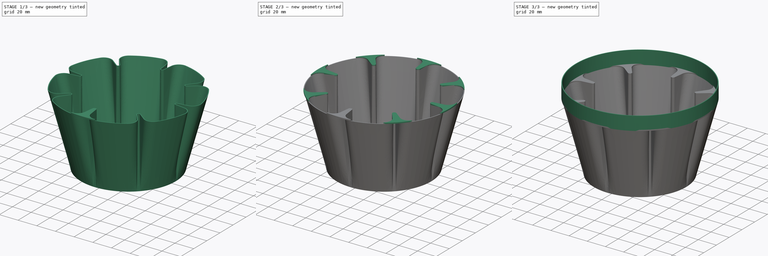
[diagram: build sequence overview — one tinted view per stage of 3, left to right]
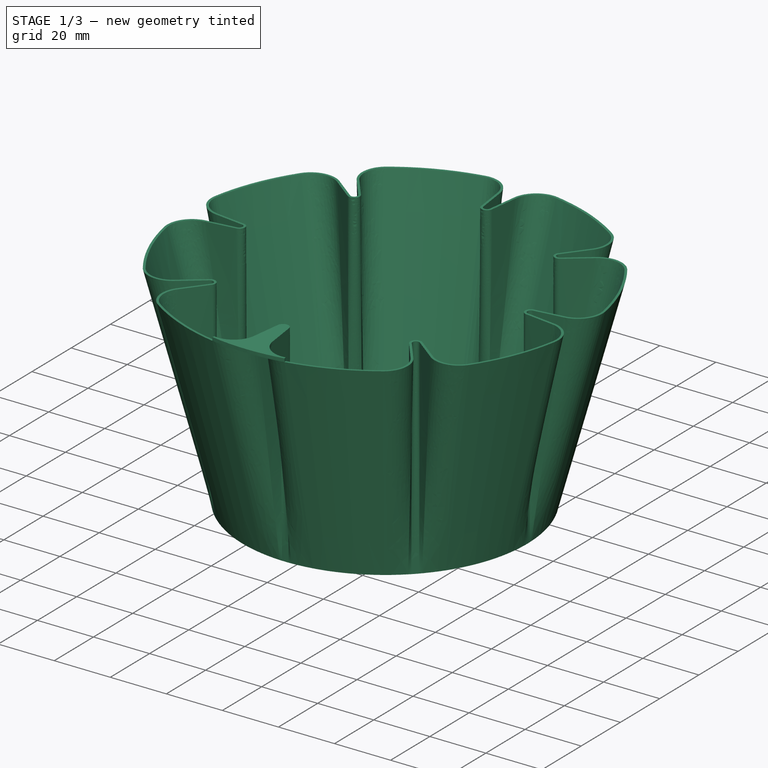
[diagram: stage 1 of 3 — iso view after this stage's code; geometry added in this stage tinted green]
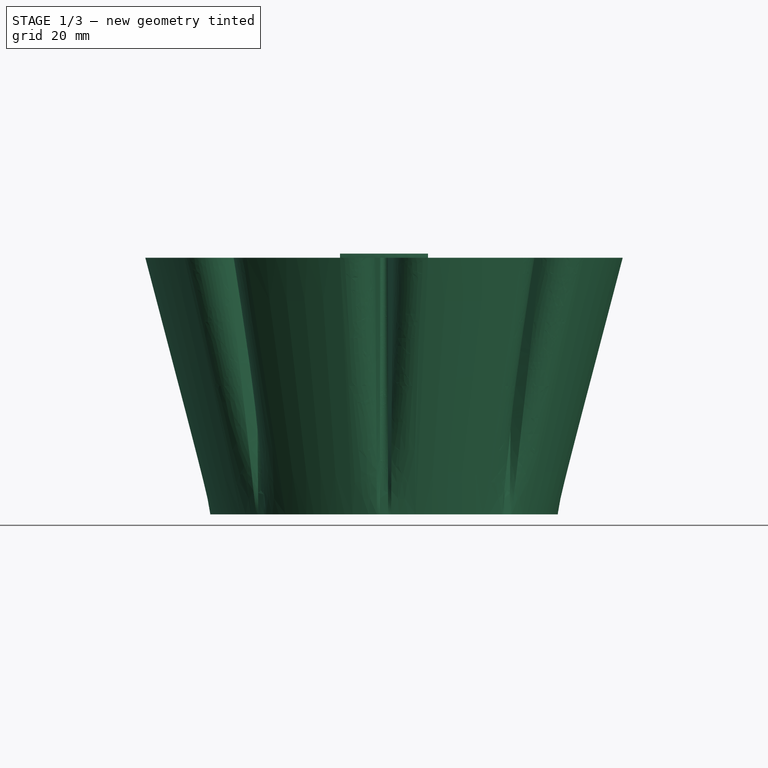
[diagram: stage 1 of 3 — front view after this stage's code; geometry added in this stage tinted green]
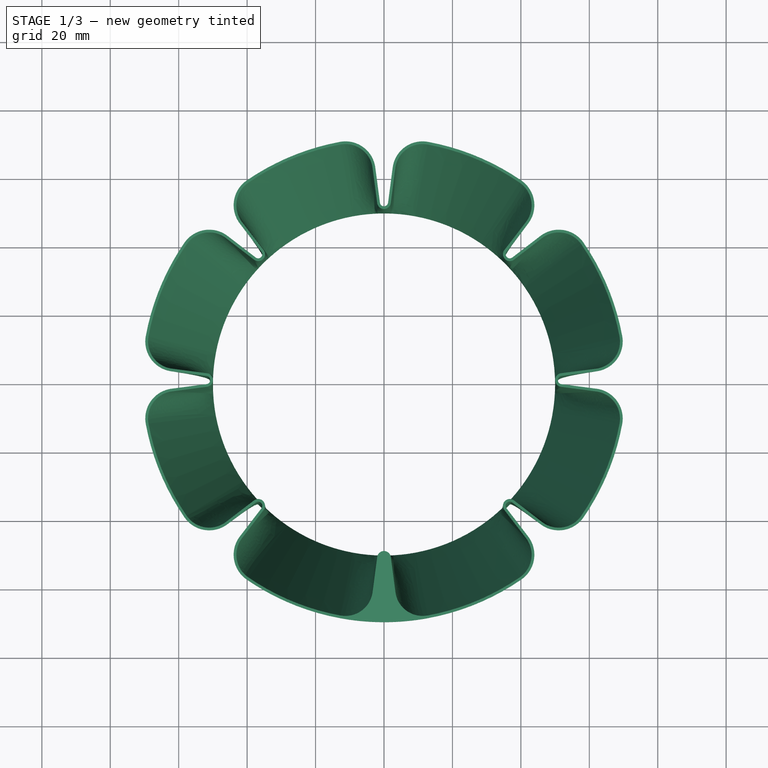
[diagram: stage 1 of 3 — top view after this stage's code; geometry added in this stage tinted green]
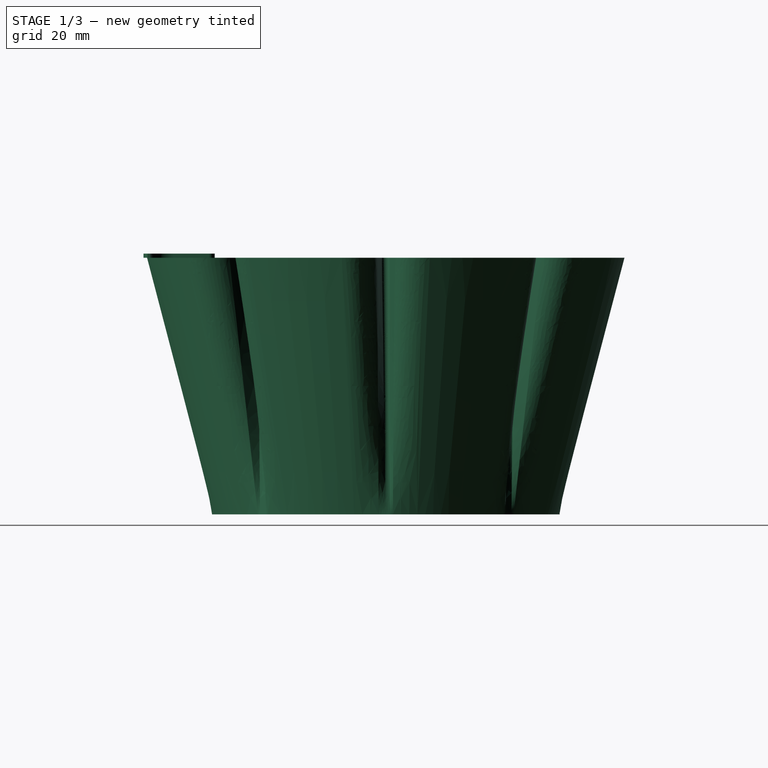
[diagram: stage 1 of 3 — right view after this stage's code; geometry added in this stage tinted green]
FCSTD DOCUMENT  (FreeCAD 0.19R23756 (Git))
Label: Kaspo
License: All rights reserved
LicenseURL: http://en.wikipedia.org/wiki/All_rights_reserved
objects: Sketcher::SketchObject×5, PartDesign::Pad×3, PartDesign::AdditiveLoft×1, PartDesign::PolarPattern×1, PartDesign::Body×1
note: 15 computed .brp shape members not serialized (recipe doc carries the construction recipe); baked Part::Feature solids carry a one-line shape summary decoded from their .brp

FEATURE [Sketcher::SketchObject] Sketch
  AttachmentOffset = pos=(0,0,75) rot=(0,0,1;0rad)
  FullyConstrained = true
  MapMode = 5
  Placement = pos=(0,0,75) rot=(0,0,1;0rad)
  Support = -> [XY_Plane]
  sketch-geometry (155):
    g0: Circle CenterX=0 CenterY=0 CenterZ=0 NormalX=0 NormalY=0 NormalZ=1 AngleXU=0 Radius=50
    g1: ArcOfCircle CenterX=1e-16 CenterY=-52 CenterZ=0 NormalX=0 NormalY=0 NormalZ=1 AngleXU=0 Radius=2 StartAngle=0.1309 EndAngle=3.01069
    g2: LineSegment StartX=-1.98289 StartY=-51.7389 StartZ=0 EndX=-3.33535 EndY=-62.0119 EndZ=0
    g3: LineSegment StartX=1.98289 StartY=-51.7389 StartZ=0 EndX=3.33535 EndY=-62.0119 EndZ=0
    g4: ArcOfCircle CenterX=-11.2669 CenterY=-60.9677 CenterZ=0 NormalX=0 NormalY=0 NormalZ=1 AngleXU=0 Radius=8 StartAngle=4.52965 EndAngle=6.15229
    g5: ArcOfCircle CenterX=0 CenterY=0 CenterZ=0 NormalX=0 NormalY=0 NormalZ=1 AngleXU=0 Radius=70 StartAngle=4.10973 EndAngle=4.52965
    g6: ArcOfCircle CenterX=-52 CenterY=0 CenterZ=0 NormalX=0 NormalY=0 NormalZ=1 AngleXU=0 Radius=2 StartAngle=4.84329 EndAngle=7.72308
    g7: ArcOfCircle CenterX=-36.7696 CenterY=-36.7696 CenterZ=0 NormalX=0 NormalY=0 NormalZ=1 AngleXU=0 Radius=2 StartAngle=5.62869 EndAngle=8.50848
    g8: LineSegment StartX=-36.7696 StartY=-36.7696 StartZ=0 EndX=36.7696 EndY=36.7696 EndZ=0
    g9: LineSegment StartX=-35.1828 StartY=-37.9871 StartZ=0 EndX=-41.4906 EndY=-46.2075 EndZ=0
    g10: LineSegment StartX=-37.9871 StartY=-35.1828 StartZ=0 EndX=-46.2075 EndY=-41.4906 EndZ=0
    g11: ArcOfCircle CenterX=-35.1437 CenterY=-51.0776 CenterZ=0 NormalX=0 NormalY=0 NormalZ=1 AngleXU=0 Radius=8 StartAngle=2.48709 EndAngle=4.10973
    g12: ArcOfCircle CenterX=0 CenterY=0 CenterZ=0 NormalX=0 NormalY=0 NormalZ=1 AngleXU=0 Radius=70 StartAngle=3.32433 EndAngle=3.74425
    g13: ArcOfCircle CenterX=-51.0776 CenterY=-35.1437 CenterZ=0 NormalX=0 NormalY=0 NormalZ=1 AngleXU=0 Radius=8 StartAngle=3.74425 EndAngle=5.36689
    g14: LineSegment StartX=-46.2075 StartY=-41.4906 StartZ=0 EndX=-41.4906 EndY=-46.2075 EndZ=0
    g15: LineSegment StartX=-51.7389 StartY=-1.98289 StartZ=0 EndX=-62.0119 EndY=-3.33535 EndZ=0
    g16: LineSegment StartX=-51.7389 StartY=1.98289 StartZ=0 EndX=-62.0119 EndY=3.33535 EndZ=0
    g17: ArcOfCircle CenterX=-60.9677 CenterY=-11.2669 CenterZ=0 NormalX=0 NormalY=0 NormalZ=1 AngleXU=0 Radius=8 StartAngle=1.7017 EndAngle=3.32433
    g18: LineSegment StartX=-3.33535 StartY=-62.0119 StartZ=0 EndX=3.33535 EndY=-62.0119 EndZ=0
    g19: LineSegment StartX=-62.0119 StartY=3.33535 StartZ=0 EndX=-62.0119 EndY=-3.33535 EndZ=0
    g20: ArcOfCircle CenterX=52 CenterY=-1e-16 CenterZ=0 NormalX=0 NormalY=0 NormalZ=1 AngleXU=0 Radius=2 StartAngle=1.7017 EndAngle=4.58149
    g21: ArcOfCircle CenterX=-2e-16 CenterY=52 CenterZ=0 NormalX=0 NormalY=0 NormalZ=1 AngleXU=0 Radius=2 StartAngle=3.27249 EndAngle=6.15229
    g22: LineSegment StartX=-36.7696 StartY=36.7696 StartZ=0 EndX=36.7696 EndY=-36.7696 EndZ=0
    g23: ArcOfCircle CenterX=36.7696 CenterY=-36.7696 CenterZ=0 NormalX=0 NormalY=0 NormalZ=1 AngleXU=0 Radius=2 StartAngle=0.916298 EndAngle=3.79609
    g24: ArcOfCircle CenterX=-36.7696 CenterY=36.7696 CenterZ=0 NormalX=0 NormalY=0 NormalZ=1 AngleXU=0 Radius=2 StartAngle=4.05789 EndAngle=6.93768
    g25: LineSegment StartX=35.1828 StartY=-37.9871 StartZ=0 EndX=41.4906 EndY=-46.2075 EndZ=0
    g26: LineSegment StartX=37.9871 StartY=-35.1828 StartZ=0 EndX=46.2075 EndY=-41.4906 EndZ=0
    g27: LineSegment StartX=41.4906 StartY=-46.2075 StartZ=0 EndX=46.2075 EndY=-41.4906 EndZ=0
    g28: LineSegment StartX=51.7389 StartY=-1.98289 StartZ=0 EndX=62.0119 EndY=-3.33535 EndZ=0
    g29: LineSegment StartX=51.7389 StartY=1.98289 StartZ=0 EndX=62.0119 EndY=3.33535 EndZ=0
    g30: LineSegment StartX=62.0119 StartY=3.33535 StartZ=0 EndX=62.0119 EndY=-3.33535 EndZ=0
    g31: ArcOfCircle CenterX=36.7696 CenterY=36.7696 CenterZ=0 NormalX=0 NormalY=0 NormalZ=1 AngleXU=0 Radius=2 StartAngle=2.48709 EndAngle=5.36689
    g32: LineSegment StartX=37.9871 StartY=35.1828 StartZ=0 EndX=46.2075 EndY=41.4906 EndZ=0
    g33: LineSegment StartX=35.1828 StartY=37.9871 StartZ=0 EndX=41.4906 EndY=46.2075 EndZ=0
    g34: LineSegment StartX=-35.1828 StartY=37.9871 StartZ=0 EndX=-41.4906 EndY=46.2075 EndZ=0
    g35: LineSegment StartX=-37.9871 StartY=35.1828 StartZ=0 EndX=-46.2075 EndY=41.4906 EndZ=0
    g36: LineSegment StartX=-1.98289 StartY=51.7389 StartZ=0 EndX=-3.33535 EndY=62.0119 EndZ=0
    g37: LineSegment StartX=1.98289 StartY=51.7389 StartZ=0 EndX=3.33535 EndY=62.0119 EndZ=0
    g38: LineSegment StartX=-46.2075 StartY=41.4906 StartZ=0 EndX=-41.4906 EndY=46.2075 EndZ=0
    g39: LineSegment StartX=-3.33535 StartY=62.0119 StartZ=0 EndX=3.33535 EndY=62.0119 EndZ=0
    g40: LineSegment StartX=41.4906 StartY=46.2075 StartZ=0 EndX=46.2075 EndY=41.4906 EndZ=0
    g41: ArcOfCircle CenterX=0 CenterY=0 CenterZ=0 NormalX=0 NormalY=0 NormalZ=1 AngleXU=0 Radius=70 StartAngle=2.53893 EndAngle=2.95885
    g42: ArcOfCircle CenterX=0 CenterY=0 CenterZ=0 NormalX=0 NormalY=0 NormalZ=1 AngleXU=0 Radius=70 StartAngle=1.75354 EndAngle=2.17345
    g43: ArcOfCircle CenterX=0 CenterY=0 CenterZ=0 NormalX=0 NormalY=0 NormalZ=1 AngleXU=0 Radius=70 StartAngle=0.968138 EndAngle=1.38806
    g44: ArcOfCircle CenterX=0 CenterY=0 CenterZ=0 NormalX=0 NormalY=0 NormalZ=1 AngleXU=0 Radius=70 StartAngle=0.18274 EndAngle=0.602659
    g45: ArcOfCircle CenterX=0 CenterY=0 CenterZ=0 NormalX=0 NormalY=0 NormalZ=1 AngleXU=0 Radius=70 StartAngle=5.68053 EndAngle=6.10045
    g46: ArcOfCircle CenterX=0 CenterY=0 CenterZ=0 NormalX=0 NormalY=0 NormalZ=1 AngleXU=0 Radius=70 StartAngle=4.89513 EndAngle=5.31505
    g47: ArcOfCircle CenterX=-60.9677 CenterY=11.2669 CenterZ=0 NormalX=0 NormalY=0 NormalZ=1 AngleXU=0 Radius=8 StartAngle=2.95885 EndAngle=4.58149
    g48: ArcOfCircle CenterX=-51.0776 CenterY=35.1437 CenterZ=0 NormalX=0 NormalY=0 NormalZ=1 AngleXU=0 Radius=8 StartAngle=0.916298 EndAngle=2.53893
    g49: ArcOfCircle CenterX=-35.1437 CenterY=51.0776 CenterZ=0 NormalX=0 NormalY=0 NormalZ=1 AngleXU=0 Radius=8 StartAngle=2.17345 EndAngle=3.79609
    g50: ArcOfCircle CenterX=-11.2669 CenterY=60.9677 CenterZ=0 NormalX=0 NormalY=0 NormalZ=1 AngleXU=0 Radius=8 StartAngle=0.1309 EndAngle=1.75354
    g51: ArcOfCircle CenterX=11.2669 CenterY=60.9677 CenterZ=0 NormalX=0 NormalY=0 NormalZ=1 AngleXU=0 Radius=8 StartAngle=1.38806 EndAngle=3.01069
    g52: ArcOfCircle CenterX=35.1437 CenterY=51.0776 CenterZ=0 NormalX=0 NormalY=0 NormalZ=1 AngleXU=0 Radius=8 StartAngle=5.62869 EndAngle=7.25132
    g53: ArcOfCircle CenterX=51.0776 CenterY=35.1437 CenterZ=0 NormalX=0 NormalY=0 NormalZ=1 AngleXU=0 Radius=8 StartAngle=0.602659 EndAngle=2.22529
    g54: ArcOfCircle CenterX=60.9677 CenterY=11.2669 CenterZ=0 NormalX=0 NormalY=0 NormalZ=1 AngleXU=0 Radius=8 StartAngle=4.84329 EndAngle=6.46592
    g55: ArcOfCircle CenterX=60.9677 CenterY=-11.2669 CenterZ=0 NormalX=0 NormalY=0 NormalZ=1 AngleXU=0 Radius=8 StartAngle=6.10045 EndAngle=7.72308
    g56: ArcOfCircle CenterX=51.0776 CenterY=-35.1437 CenterZ=0 NormalX=0 NormalY=0 NormalZ=1 AngleXU=0 Radius=8 StartAngle=4.05789 EndAngle=5.68053
    g57: ArcOfCircle CenterX=35.1437 CenterY=-51.0776 CenterZ=0 NormalX=0 NormalY=0 NormalZ=1 AngleXU=0 Radius=8 StartAngle=5.31505 EndAngle=6.93768
    g58: ArcOfCircle CenterX=11.2669 CenterY=-60.9677 CenterZ=0 NormalX=0 NormalY=0 NormalZ=1 AngleXU=0 Radius=8 StartAngle=3.27249 EndAngle=4.89513
    g59: ArcOfCircle CenterX=-36.7696 CenterY=36.7696 CenterZ=0 NormalX=0 NormalY=0 NormalZ=1 AngleXU=0 Radius=1.2 StartAngle=4.05789 EndAngle=6.93768
    g60: LineSegment StartX=-35.8175 StartY=37.5001 StartZ=0 EndX=-35.1828 EndY=37.9871 EndZ=0
    g61: LineSegment StartX=-37.5001 StartY=35.8175 StartZ=0 EndX=-37.9871 EndY=35.1828 EndZ=0
    g62: ArcOfCircle CenterX=-35.1437 CenterY=51.0776 CenterZ=0 NormalX=0 NormalY=0 NormalZ=1 AngleXU=0 Radius=8.8 StartAngle=2.17345 EndAngle=3.79609
    g63: LineSegment StartX=-42.1253 StartY=45.7205 StartZ=0 EndX=-41.4906 EndY=46.2075 EndZ=0
    g64: LineSegment StartX=-40.1319 StartY=58.3273 StartZ=0 EndX=-39.6784 EndY=57.6682 EndZ=0
    g65: LineSegment StartX=-42.1253 StartY=45.7205 StartZ=0 EndX=-35.8175 EndY=37.5001 EndZ=0
    g66: ArcOfCircle CenterX=-51.0776 CenterY=35.1437 CenterZ=0 NormalX=0 NormalY=0 NormalZ=1 AngleXU=0 Radius=8.8 StartAngle=0.916298 EndAngle=2.53893
    g67: LineSegment StartX=-45.7205 StartY=42.1253 StartZ=0 EndX=-37.5001 EndY=35.8175 EndZ=0
    g68: LineSegment StartX=-58.3273 StartY=40.1319 StartZ=0 EndX=-57.6682 EndY=39.6784 EndZ=0
    g69: LineSegment StartX=-45.7205 StartY=42.1253 StartZ=0 EndX=-46.2075 EndY=41.4906 EndZ=0
    g70: ArcOfCircle CenterX=-11.2669 CenterY=60.9677 CenterZ=0 NormalX=0 NormalY=0 NormalZ=1 AngleXU=0 Radius=8.8 StartAngle=0.1309 EndAngle=1.75354
    g71: ArcOfCircle CenterX=11.2669 CenterY=60.9677 CenterZ=0 NormalX=0 NormalY=0 NormalZ=1 AngleXU=0 Radius=8.8 StartAngle=1.38806 EndAngle=3.01069
    g72: ArcOfCircle CenterX=35.1437 CenterY=51.0776 CenterZ=0 NormalX=0 NormalY=0 NormalZ=1 AngleXU=0 Radius=8.8 StartAngle=5.62869 EndAngle=7.25132
    g73: ArcOfCircle CenterX=51.0776 CenterY=35.1437 CenterZ=0 NormalX=0 NormalY=0 NormalZ=1 AngleXU=0 Radius=8.8 StartAngle=0.602659 EndAngle=2.22529
    g74: ArcOfCircle CenterX=-2e-16 CenterY=52 CenterZ=0 NormalX=0 NormalY=0 NormalZ=1 AngleXU=0 Radius=1.2 StartAngle=3.27249 EndAngle=6.15229
    g75: ArcOfCircle CenterX=36.7696 CenterY=36.7696 CenterZ=0 NormalX=0 NormalY=0 NormalZ=1 AngleXU=0 Radius=1.2 StartAngle=2.48709 EndAngle=5.36689
    g76: ArcOfCircle CenterX=52 CenterY=-1e-16 CenterZ=0 NormalX=0 NormalY=0 NormalZ=1 AngleXU=0 Radius=1.2 StartAngle=1.7017 EndAngle=4.58149
    g77: ArcOfCircle CenterX=60.9677 CenterY=11.2669 CenterZ=0 NormalX=0 NormalY=0 NormalZ=1 AngleXU=0 Radius=8.8 StartAngle=4.84329 EndAngle=6.46592
    g78: ArcOfCircle CenterX=60.9677 CenterY=-11.2669 CenterZ=0 NormalX=0 NormalY=0 NormalZ=1 AngleXU=0 Radius=8.8 StartAngle=6.10045 EndAngle=7.72308
    g79: ArcOfCircle CenterX=51.0776 CenterY=-35.1437 CenterZ=0 NormalX=0 NormalY=0 NormalZ=1 AngleXU=0 Radius=8.8 StartAngle=4.05789 EndAngle=5.68053
    g80: ArcOfCircle CenterX=36.7696 CenterY=-36.7696 CenterZ=0 NormalX=0 NormalY=0 NormalZ=1 AngleXU=0 Radius=1.2 StartAngle=0.916298 EndAngle=3.79609
    g81: ArcOfCircle CenterX=35.1437 CenterY=-51.0776 CenterZ=0 NormalX=0 NormalY=0 NormalZ=1 AngleXU=0 Radius=8.8 StartAngle=5.31505 EndAngle=6.93768
    g82: ArcOfCircle CenterX=1e-16 CenterY=-52 CenterZ=0 NormalX=0 NormalY=0 NormalZ=1 AngleXU=0 Radius=1.2 StartAngle=0.1309 EndAngle=3.01069
    g83: ArcOfCircle CenterX=11.2669 CenterY=-60.9677 CenterZ=0 NormalX=0 NormalY=0 NormalZ=1 AngleXU=0 Radius=8.8 StartAngle=3.27249 EndAngle=4.89513
    g84: ArcOfCircle CenterX=-11.2669 CenterY=-60.9677 CenterZ=0 NormalX=0 NormalY=0 NormalZ=1 AngleXU=0 Radius=8.8 StartAngle=4.52965 EndAngle=6.15229
    g85: ArcOfCircle CenterX=-36.7696 CenterY=-36.7696 CenterZ=0 NormalX=0 NormalY=0 NormalZ=1 AngleXU=0 Radius=1.2 StartAngle=5.62869 EndAngle=8.50848
    g86: ArcOfCircle CenterX=-35.1437 CenterY=-51.0776 CenterZ=0 NormalX=0 NormalY=0 NormalZ=1 AngleXU=0 Radius=8.8 StartAngle=2.48709 EndAngle=4.10973
    g87: ArcOfCircle CenterX=-51.0776 CenterY=-35.1437 CenterZ=0 NormalX=0 NormalY=0 NormalZ=1 AngleXU=0 Radius=8.8 StartAngle=3.74425 EndAngle=5.36689
    g88: ArcOfCircle CenterX=-52 CenterY=0 CenterZ=0 NormalX=0 NormalY=0 NormalZ=1 AngleXU=0 Radius=1.2 StartAngle=4.84329 EndAngle=7.72308
    g89: ArcOfCircle CenterX=-60.9677 CenterY=11.2669 CenterZ=0 NormalX=0 NormalY=0 NormalZ=1 AngleXU=0 Radius=8.8 StartAngle=2.95885 EndAngle=4.58149
    g90: ArcOfCircle CenterX=-60.9677 CenterY=-11.2669 CenterZ=0 NormalX=0 NormalY=0 NormalZ=1 AngleXU=0 Radius=8.8 StartAngle=1.7017 EndAngle=3.32433
    g91: LineSegment StartX=-69.6211 StartY=12.8661 StartZ=0 EndX=-68.8345 EndY=12.7207 EndZ=0
    g92: LineSegment StartX=-62.1163 StartY=2.54219 StartZ=0 EndX=-62.0119 EndY=3.33535 EndZ=0
    g93: LineSegment StartX=-62.1163 StartY=-2.54219 StartZ=0 EndX=-62.0119 EndY=-3.33535 EndZ=0
    g94: LineSegment StartX=-69.6211 StartY=-12.8661 StartZ=0 EndX=-68.8345 EndY=-12.7207 EndZ=0
    g95: LineSegment StartX=-51.7389 StartY=1.98289 StartZ=0 EndX=-51.8434 EndY=1.18973 EndZ=0
    g96: LineSegment StartX=-51.8434 StartY=-1.18973 StartZ=0 EndX=-51.7389 EndY=-1.98289 EndZ=0
    g97: ArcOfCircle CenterX=0 CenterY=0 CenterZ=0 NormalX=0 NormalY=0 NormalZ=1 AngleXU=0 Radius=70.8 StartAngle=2.53893 EndAngle=2.95885
    g98: ArcOfCircle CenterX=0 CenterY=0 CenterZ=0 NormalX=0 NormalY=0 NormalZ=1 AngleXU=0 Radius=70.8 StartAngle=3.32433 EndAngle=3.74425
    g99: LineSegment StartX=-58.3273 StartY=-40.1319 StartZ=0 EndX=-57.6682 EndY=-39.6784 EndZ=0
    g100: LineSegment StartX=-45.7205 StartY=-42.1253 StartZ=0 EndX=-46.2075 EndY=-41.4906 EndZ=0
    g101: LineSegment StartX=-37.9871 StartY=-35.1828 StartZ=0 EndX=-37.5001 EndY=-35.8175 EndZ=0
    g102: LineSegment StartX=-35.8175 StartY=-37.5001 StartZ=0 EndX=-35.1828 EndY=-37.9871 EndZ=0
    g103: LineSegment StartX=-42.1253 StartY=-45.7205 StartZ=0 EndX=-41.4906 EndY=-46.2075 EndZ=0
    g104: LineSegment StartX=-40.1319 StartY=-58.3273 StartZ=0 EndX=-39.6784 EndY=-57.6682 EndZ=0
    g105: LineSegment StartX=-12.8661 StartY=-69.6211 StartZ=0 EndX=-12.7207 EndY=-68.8345 EndZ=0
    g106: LineSegment StartX=-2.54219 StartY=-62.1163 StartZ=0 EndX=-3.33535 EndY=-62.0119 EndZ=0
    g107: LineSegment StartX=-1.98289 StartY=-51.7389 StartZ=0 EndX=-1.18973 EndY=-51.8434 EndZ=0
    g108: LineSegment StartX=1.98289 StartY=-51.7389 StartZ=0 EndX=1.18973 EndY=-51.8434 EndZ=0
    g109: LineSegment StartX=2.54219 StartY=-62.1163 StartZ=0 EndX=3.33535 EndY=-62.0119 EndZ=0
    g110: LineSegment StartX=12.8661 StartY=-69.6211 StartZ=0 EndX=12.7207 EndY=-68.8345 EndZ=0
    g111: LineSegment StartX=40.1319 StartY=-58.3273 StartZ=0 EndX=39.6784 EndY=-57.6682 EndZ=0
    g112: LineSegment StartX=41.4906 StartY=-46.2075 StartZ=0 EndX=42.1253 EndY=-45.7205 EndZ=0
    g113: LineSegment StartX=46.2075 StartY=-41.4906 StartZ=0 EndX=45.7205 EndY=-42.1253 EndZ=0
    g114: LineSegment StartX=35.1828 StartY=-37.9871 StartZ=0 EndX=35.8175 EndY=-37.5001 EndZ=0
    g115: LineSegment StartX=37.5001 StartY=-35.8175 StartZ=0 EndX=37.9871 EndY=-35.1828 EndZ=0
    g116: LineSegment StartX=57.6682 StartY=-39.6784 StartZ=0 EndX=58.3273 EndY=-40.1319 EndZ=0
    g117: LineSegment StartX=68.8345 StartY=-12.7207 StartZ=0 EndX=69.6211 EndY=-12.8661 EndZ=0
    g118: LineSegment StartX=62.1163 StartY=-2.54219 StartZ=0 EndX=62.0119 EndY=-3.33535 EndZ=0
    g119: LineSegment StartX=62.0119 StartY=3.33535 StartZ=0 EndX=62.1163 EndY=2.54219 EndZ=0
    g120: LineSegment StartX=68.8345 StartY=12.7207 StartZ=0 EndX=69.6211 EndY=12.8661 EndZ=0
    g121: LineSegment StartX=51.7389 StartY=1.98289 StartZ=0 EndX=51.8434 EndY=1.18973 EndZ=0
    g122: LineSegment StartX=51.7389 StartY=-1.98289 StartZ=0 EndX=51.8434 EndY=-1.18973 EndZ=0
    g123: LineSegment StartX=37.5001 StartY=35.8175 StartZ=0 EndX=37.9871 EndY=35.1828 EndZ=0
    g124: LineSegment StartX=35.8175 StartY=37.5001 StartZ=0 EndX=35.1828 EndY=37.9871 EndZ=0
    g125: LineSegment StartX=45.7205 StartY=42.1253 StartZ=0 EndX=46.2075 EndY=41.4906 EndZ=0
    g126: LineSegment StartX=42.1253 StartY=45.7205 StartZ=0 EndX=41.4906 EndY=46.2075 EndZ=0
    g127: LineSegment StartX=58.3273 StartY=40.1319 StartZ=0 EndX=57.6682 EndY=39.6784 EndZ=0
    g128: LineSegment StartX=40.1319 StartY=58.3273 StartZ=0 EndX=39.6784 EndY=57.6682 EndZ=0
    g129: LineSegment StartX=12.8661 StartY=69.6211 StartZ=0 EndX=12.7207 EndY=68.8345 EndZ=0
    g130: LineSegment StartX=2.54219 StartY=62.1163 StartZ=0 EndX=3.33535 EndY=62.0119 EndZ=0
    g131: LineSegment StartX=1.18973 StartY=51.8434 StartZ=0 EndX=1.98289 EndY=51.7389 EndZ=0
    g132: LineSegment StartX=-1.98289 StartY=51.7389 StartZ=0 EndX=-1.18973 EndY=51.8434 EndZ=0
    g133: LineSegment StartX=-3.33535 StartY=62.0119 StartZ=0 EndX=-2.54219 EndY=62.1163 EndZ=0
    g134: LineSegment StartX=-12.8661 StartY=69.6211 StartZ=0 EndX=-12.7207 EndY=68.8345 EndZ=0
    g135: ArcOfCircle CenterX=0 CenterY=0 CenterZ=0 NormalX=0 NormalY=0 NormalZ=1 AngleXU=0 Radius=70.8 StartAngle=1.75354 EndAngle=2.17345
    g136: LineSegment StartX=-1.18973 StartY=-51.8434 StartZ=0 EndX=-2.54219 EndY=-62.1163 EndZ=0
    g137: LineSegment StartX=1.18973 StartY=-51.8434 StartZ=0 EndX=2.54219 EndY=-62.1163 EndZ=0
    g138: LineSegment StartX=-62.1163 StartY=2.54219 StartZ=0 EndX=-51.8434 EndY=1.18973 EndZ=0
    g139: LineSegment StartX=-62.1163 StartY=-2.54219 StartZ=0 EndX=-51.8434 EndY=-1.18973 EndZ=0
    g140: ArcOfCircle CenterX=0 CenterY=0 CenterZ=0 NormalX=0 NormalY=0 NormalZ=1 AngleXU=0 Radius=70.8 StartAngle=4.10973 EndAngle=4.52965
    g141: LineSegment StartX=-35.8175 StartY=-37.5001 StartZ=0 EndX=-42.1253 EndY=-45.7205 EndZ=0
    g142: LineSegment StartX=-45.7205 StartY=-42.1253 StartZ=0 EndX=-37.5001 EndY=-35.8175 EndZ=0
    g143: ArcOfCircle CenterX=0 CenterY=0 CenterZ=0 NormalX=0 NormalY=0 NormalZ=1 AngleXU=0 Radius=70.8 StartAngle=4.89513 EndAngle=5.31505
    g144: ArcOfCircle CenterX=0 CenterY=0 CenterZ=0 NormalX=0 NormalY=0 NormalZ=1 AngleXU=0 Radius=70.8 StartAngle=5.68053 EndAngle=6.10045
    g145: ArcOfCircle CenterX=0 CenterY=0 CenterZ=0 NormalX=0 NormalY=0 NormalZ=1 AngleXU=0 Radius=70.8 StartAngle=0.18274 EndAngle=0.602659
    g146: LineSegment StartX=-2.54219 StartY=62.1163 StartZ=0 EndX=-1.18973 EndY=51.8434 EndZ=0
    g147: LineSegment StartX=1.18973 StartY=51.8434 StartZ=0 EndX=2.54219 EndY=62.1163 EndZ=0
    g148: ArcOfCircle CenterX=0 CenterY=0 CenterZ=0 NormalX=0 NormalY=0 NormalZ=1 AngleXU=0 Radius=70.8 StartAngle=0.968138 EndAngle=1.38806
    g149: LineSegment StartX=42.1253 StartY=45.7205 StartZ=0 EndX=35.8175 EndY=37.5001 EndZ=0
    g150: LineSegment StartX=45.7205 StartY=42.1253 StartZ=0 EndX=37.5001 EndY=35.8175 EndZ=0
    g151: LineSegment StartX=51.8434 StartY=1.18973 StartZ=0 EndX=62.1163 EndY=2.54219 EndZ=0
    g152: LineSegment StartX=51.8434 StartY=-1.18973 StartZ=0 EndX=62.1163 EndY=-2.54219 EndZ=0
    g153: LineSegment StartX=37.5001 StartY=-35.8175 StartZ=0 EndX=45.7205 EndY=-42.1253 EndZ=0
    g154: LineSegment StartX=35.8175 StartY=-37.5001 StartZ=0 EndX=42.1253 EndY=-45.7205 EndZ=0
  constraints (374):
    c: Coincident(g0,g-1)
    c: Radius(g0) = 50  'Ri'
    c: Tangent(g1,g0)
    c: Symmetric(g1,g1,g-2)
    c: Radius(g1) = 2
    c: Tangent(g1,g2) = -1.5708
    c: Tangent(g1,g3) = 1.5708
    c: Equal(g2,g3)
    c: Tangent(g2,g4) = 1.5708
    c: Coincident(g5,g-1)
    c: Tangent(g4,g5) = -1.5708
    c: Equal(g6,g1)
    c: Symmetric(g6,g6,g-1)
    c: Radius(g4) = 8
    c: Tangent(g5,g11) = -1.5708
    c: Equal(g11,g4)
    c: Equal(g7,g1)
    c: Tangent(g7,g0)
    c: Coincident(g7,g8)
    c: Tangent(g7,g10) = -1.5708
    c: Tangent(g7,g9) = 1.5708
    c: Symmetric(g7,g8,g5)
    c: Equal(g10,g9)
    c: Equal(g9,g2)
    c: Tangent(g9,g11) = -1.5708
    c: Coincident(g12,g5)
    c: Equal(g12,g5)
    c: Radius(g5) = 70  'Ro'
    c: Tangent(g10,g13) = 1.5708
    c: Tangent(g12,g13) = -1.5708
    c: Equal(g13,g11)
    c: Coincident(g14,g10)
    c: Coincident(g14,g9)
    c: Tangent(g6,g16) = -1.5708
    c: Tangent(g6,g15) = 1.5708
    c: Tangent(g15,g17) = -1.5708
    c: Tangent(g12,g17) = -1.5708
    c: Equal(g17,g13)
    c: Equal(g16,g15)
    c: Equal(g15,g10)
    c: Coincident(g18,g2)
    c: Coincident(g18,g3)
    c: Coincident(g19,g16)
    c: Coincident(g19,g15)
    c: Angle(g2,g3) = 0.261799
    c: Symmetric(g6,g1,g8)
    c: Tangent(g20,g0)
    c: Symmetric(g20,g20,g-1)
    c: Tangent(g21,g0)
    c: Symmetric(g21,g21,g-2)
    c: Equal(g6,g21)
    c: Symmetric(g22,g22,g5)
    c: Symmetric(g1,g20,g22)
    c: Coincident(g23,g22)
    c: Coincident(g24,g22)
    c: Tangent(g24,g0)
    c: Tangent(g23,g0)
    c: Equal(g20,g23)
    c: Tangent(g23,g26) = 1.5708
    c: Tangent(g23,g25) = -1.5708
    c: Equal(g3,g25)
    c: Equal(g25,g26)
    c: Coincident(g27,g25)
    c: Coincident(g27,g26)
    c: Equal(g27,g18)
    c: Perpendicular(g22,g27)
    c: Tangent(g20,g29) = 1.5708
    c: Tangent(g20,g28) = -1.5708
    c: Equal(g26,g28)
    c: Equal(g28,g29)
    c: Coincident(g30,g29)
    c: Coincident(g30,g28)
    c: Equal(g30,g27)
    c: Coincident(g31,g8)
    c: Equal(g31,g24)
    c: Tangent(g24,g35) = 1.5708
    c: Tangent(g24,g34) = -1.5708
    c: Tangent(g21,g36) = 1.5708
    c: Tangent(g21,g37) = -1.5708
    c: Tangent(g31,g33) = 1.5708
    c: Tangent(g31,g32) = -1.5708
    c: Equal(g29,g32)
    c: Equal(g32,g33)
    c: Equal(g33,g37)
    c: Equal(g37,g36)
    c: Equal(g36,g34)
    c: Equal(g34,g35)
    c: Coincident(g38,g35)
    c: Coincident(g38,g34)
    c: Coincident(g39,g36)
    c: Coincident(g39,g37)
    c: Coincident(g40,g33)
    c: Coincident(g40,g32)
    c: Perpendicular(g22,g38)
    c: Perpendicular(g8,g40)
    c: Equal(g30,g40)
    c: Equal(g40,g39)
    c: Equal(g39,g38)
    c: Coincident(g41,g5)
    c: Coincident(g42,g5)
    c: Coincident(g43,g5)
    c: Coincident(g44,g5)
    c: Coincident(g45,g5)
    c: Coincident(g46,g5)
    c: Equal(g12,g41)
    c: Equal(g41,g42)
    c: Equal(g42,g43)
    c: Equal(g43,g44)
    c: Equal(g44,g45)
    c: Equal(g45,g46)
    c: Tangent(g44,g53) = -1.5708
    c: Tangent(g43,g52) = -1.5708
    c: Tangent(g43,g51) = -1.5708
    c: Tangent(g42,g50) = -1.5708
    c: Tangent(g42,g49) = -1.5708
    c: Tangent(g48,g35) = -1.5708
    c: Tangent(g41,g48) = -1.5708
    c: Tangent(g41,g47) = -1.5708
    c: Tangent(g47,g16) = 1.5708
    c: Tangent(g53,g32) = 1.5708
    c: Tangent(g50,g36) = -1.5708
    c: Tangent(g51,g37) = 1.5708
    c: Tangent(g52,g33) = -1.5708
    c: Tangent(g49,g34) = 1.5708
    c: Tangent(g58,g3) = -1.5708
    c: Tangent(g57,g25) = 1.5708
    c: Tangent(g56,g26) = -1.5708
    c: Tangent(g44,g54) = -1.5708
    c: Tangent(g54,g29) = -1.5708
    c: Tangent(g55,g28) = 1.5708
    c: Tangent(g45,g55) = -1.5708
    c: Tangent(g45,g56) = -1.5708
    c: Tangent(g46,g57) = -1.5708
    c: Tangent(g46,g58) = -1.5708
    c: Coincident(g59,g24)
    c: Coincident(g60,g59)
    c: Coincident(g60,g24)
    c: Coincident(g61,g59)
    c: Coincident(g61,g24)
    c: PointOnObject(g24,g61)
    c: PointOnObject(g24,g60)
    c: Coincident(g62,g49)
    c: Coincident(g63,g62)
    c: Coincident(g63,g34)
    c: Coincident(g64,g62)
    c: Coincident(g64,g42)
    c: PointOnObject(g49,g64)
    c: PointOnObject(g49,g63)
    c: Equal(g60,g63)
    c: Coincident(g65,g62)
    c: Coincident(g65,g59)
    c: Coincident(g66,g48)
    c: Coincident(g67,g66)
    c: Coincident(g67,g59)
    c: Coincident(g68,g66)
    c: Coincident(g68,g41)
    c: Coincident(g69,g66)
    c: Coincident(g69,g35)
    c: PointOnObject(g48,g68)
    c: PointOnObject(g48,g69)
    c: Coincident(g70,g50)
    c: Coincident(g71,g51)
    c: Coincident(g72,g52)
    c: Coincident(g73,g53)
    c: Coincident(g74,g21)
    c: Coincident(g75,g31)
    c: Coincident(g76,g20)
    c: Coincident(g77,g54)
    c: Coincident(g78,g55)
    c: Coincident(g79,g56)
    c: Coincident(g80,g23)
    c: Coincident(g81,g57)
    c: Coincident(g82,g1)
    c: Coincident(g83,g58)
    c: Coincident(g84,g4)
    c: Coincident(g85,g7)
    c: Coincident(g86,g11)
    c: Coincident(g87,g13)
    c: Coincident(g88,g6)
    c: Coincident(g89,g47)
    c: Coincident(g90,g17)
    c: Coincident(g91,g89)
    c: Coincident(g91,g41)
    c: Coincident(g92,g89)
    c: Coincident(g92,g16)
    c: Coincident(g93,g90)
    c: Coincident(g93,g15)
    c: Coincident(g94,g90)
    c: Coincident(g94,g12)
    c: Coincident(g95,g6)
    c: Coincident(g95,g88)
    c: Coincident(g96,g88)
    c: Coincident(g96,g6)
    c: PointOnObject(g6,g96)
    c: PointOnObject(g6,g95)
    c: PointOnObject(g47,g91)
    c: PointOnObject(g47,g92)
    c: PointOnObject(g17,g93)
    c: PointOnObject(g17,g94)
    c: Coincident(g97,g5)
    c: Coincident(g97,g66)
    c: Coincident(g97,g89)
    c: Equal(g61,g95)
    c: Equal(g93,g96)
    c: Coincident(g98,g5)
    c: Coincident(g98,g90)
    c: Coincident(g98,g87)
    c: Coincident(g99,g87)
    c: Coincident(g99,g12)
    c: Coincident(g100,g87)
    c: Coincident(g100,g10)
    c: Coincident(g101,g7)
    c: Coincident(g101,g85)
    c: Coincident(g102,g85)
    c: Coincident(g102,g7)
    c: Coincident(g103,g86)
    c: Coincident(g103,g9)
    c: Coincident(g104,g86)
    c: Coincident(g104,g5)
    c: Coincident(g105,g84)
    c: Coincident(g105,g4)
    c: Coincident(g106,g84)
    c: Coincident(g106,g2)
    c: Coincident(g107,g1)
    c: Coincident(g107,g82)
    c: Coincident(g108,g1)
    c: Coincident(g108,g82)
    c: Coincident(g109,g83)
    c: Coincident(g109,g3)
    c: Coincident(g110,g83)
    c: Coincident(g110,g46)
    c: Coincident(g111,g81)
    c: Coincident(g111,g46)
    c: Coincident(g112,g25)
    c: Coincident(g112,g81)
    c: Coincident(g113,g26)
    c: Coincident(g113,g79)
    c: Coincident(g114,g23)
    c: Coincident(g114,g80)
    c: Coincident(g115,g80)
    c: Coincident(g115,g23)
    c: Coincident(g116,g45)
    c: Coincident(g116,g79)
    c: Coincident(g117,g45)
    c: Coincident(g117,g78)
    c: Coincident(g118,g78)
    c: Coincident(g118,g28)
    c: Coincident(g119,g29)
    c: Coincident(g119,g77)
    c: Coincident(g120,g44)
    c: Coincident(g120,g77)
    c: Coincident(g121,g20)
    c: Coincident(g121,g76)
    c: Coincident(g122,g20)
    c: Coincident(g122,g76)
    c: Coincident(g123,g75)
    c: Coincident(g123,g31)
    c: Coincident(g124,g75)
    c: Coincident(g124,g31)
    c: Coincident(g125,g73)
    c: Coincident(g125,g32)
    c: Coincident(g126,g72)
    c: Coincident(g126,g33)
    c: Coincident(g127,g73)
    c: Coincident(g127,g44)
    c: Coincident(g128,g72)
    c: Coincident(g128,g43)
    c: Coincident(g129,g71)
    c: Coincident(g129,g43)
    c: Coincident(g130,g71)
    c: Coincident(g130,g37)
    c: Coincident(g131,g74)
    c: Coincident(g131,g21)
    c: Coincident(g132,g21)
    c: Coincident(g132,g74)
    c: Coincident(g133,g36)
    c: Coincident(g133,g70)
    c: Coincident(g134,g70)
    c: Coincident(g134,g42)
    c: Coincident(g135,g5)
    c: Coincident(g135,g62)
    c: Coincident(g135,g70)
    c: PointOnObject(g50,g134)
    c: PointOnObject(g50,g133)
    c: PointOnObject(g1,g107)
    c: PointOnObject(g1,g108)
    c: Distance(g107) = 0.8  'Thickness'
    c: PointOnObject(g4,g106)
    c: PointOnObject(g4,g105)
    c: PointOnObject(g58,g109)
    c: PointOnObject(g58,g110)
    c: Coincident(g136,g82)
    c: Coincident(g136,g84)
    c: Coincident(g137,g82)
    c: Coincident(g137,g83)
    c: Coincident(g138,g89)
    c: Coincident(g138,g88)
    c: Coincident(g139,g90)
    c: Coincident(g139,g88)
    c: PointOnObject(g13,g100)
    c: PointOnObject(g13,g99)
    c: PointOnObject(g11,g103)
    c: PointOnObject(g11,g104)
    c: Equal(g106,g107)
    c: Equal(g107,g109)
    c: Coincident(g140,g5)
    c: Coincident(g140,g84)
    c: Coincident(g140,g86)
    c: Equal(g103,g102)
    c: Equal(g102,g100)
    c: PointOnObject(g7,g102)
    c: PointOnObject(g7,g101)
    c: Coincident(g141,g85)
    c: Coincident(g141,g86)
    c: Coincident(g142,g87)
    c: Coincident(g142,g85)
    c: Equal(g92,g95)
    c: PointOnObject(g57,g111)
    c: PointOnObject(g57,g112)
    c: PointOnObject(g56,g113)
    c: PointOnObject(g56,g116)
    c: Coincident(g143,g5)
    c: Coincident(g143,g83)
    c: Coincident(g143,g81)
    c: Equal(g112,g113)
    c: Equal(g113,g115)
    c: PointOnObject(g23,g114)
    c: PointOnObject(g23,g115)
    c: PointOnObject(g55,g117)
    c: PointOnObject(g55,g118)
    c: PointOnObject(g54,g120)
    c: PointOnObject(g54,g119)
    c: PointOnObject(g20,g121)
    c: PointOnObject(g20,g122)
    c: Equal(g118,g122)
    c: Equal(g122,g119)
    c: Coincident(g144,g5)
    c: Coincident(g144,g79)
    c: Coincident(g144,g78)
    c: Coincident(g145,g5)
    c: Coincident(g145,g77)
    c: Coincident(g145,g73)
    c: PointOnObject(g53,g125)
    c: PointOnObject(g53,g127)
    c: PointOnObject(g52,g128)
    c: PointOnObject(g52,g126)
    c: PointOnObject(g31,g124)
    c: PointOnObject(g31,g123)
    c: Equal(g127,g123)
    c: Equal(g123,g128)
    c: PointOnObject(g51,g130)
    c: PointOnObject(g51,g129)
    c: PointOnObject(g21,g132)
    c: PointOnObject(g21,g131)
    c: Equal(g129,g131)
    c: Coincident(g146,g70)
    c: Coincident(g146,g74)
    c: Coincident(g147,g74)
    c: Coincident(g147,g71)
    c: Coincident(g148,g5)
    c: Coincident(g148,g71)
    c: Coincident(g148,g72)
    c: Coincident(g149,g72)
    c: Coincident(g149,g75)
    c: Coincident(g150,g73)
    c: Coincident(g150,g75)
    c: Coincident(g151,g76)
    c: Coincident(g151,g77)
    c: Coincident(g152,g76)
    c: Coincident(g152,g78)
    c: Coincident(g153,g80)
    c: Coincident(g153,g79)
    c: Coincident(g154,g80)
    c: Coincident(g154,g81)
FEATURE [Sketcher::SketchObject] Sketch001
  FullyConstrained = true
  MapMode = 5
  Support = -> [XY_Plane]
  expr: Constraints[3] = <<Sketch>>.Constraints.Ri + <<Sketch>>.Constraints.Thickness
  expr: Constraints[1] = <<Sketch>>.Constraints.Ri
  sketch-geometry (2):
    g0: Circle CenterX=0 CenterY=0 CenterZ=0 NormalX=0 NormalY=0 NormalZ=1 AngleXU=0 Radius=50
    g1: Circle CenterX=0 CenterY=0 CenterZ=0 NormalX=0 NormalY=0 NormalZ=1 AngleXU=0 Radius=50.8
  constraints (4):
    c: Coincident(g0,g-1)
    c: Radius(g0) = 50
    c: Coincident(g1,g0)
    c: Radius(g1) = 50.8
FEATURE [PartDesign::AdditiveLoft] AdditiveLoft
  Closed = false
  Profile = -> Sketch001
  Ruled = false
  Sections = -> [Sketch]
FEATURE [Sketcher::SketchObject] Sketch002
  AttachmentOffset = pos=(0,0,74.999) rot=(0,0,1;0rad)
  ExternalGeometry = -> [Sketch]
  FullyConstrained = true
  MapMode = 5
  Placement = pos=(0,0,74.999) rot=(0,0,1;0rad)
  Support = -> [XY_Plane]
  expr: .AttachmentOffset.Base.z = <<Sketch>>.AttachmentOffset.Base.z - 0.001mm
  sketch-geometry (8):
    g0: ArcOfCircle CenterX=0 CenterY=0 CenterZ=0 NormalX=0 NormalY=0 NormalZ=1 AngleXU=0 Radius=70.8 StartAngle=4.52965 EndAngle=4.89513
    g1: ArcOfCircle CenterX=-11.2669 CenterY=-60.9677 CenterZ=0 NormalX=0 NormalY=0 NormalZ=1 AngleXU=0 Radius=8 StartAngle=4.52965 EndAngle=6.15229
    g2: ArcOfCircle CenterX=1e-16 CenterY=-52 CenterZ=0 NormalX=0 NormalY=0 NormalZ=1 AngleXU=0 Radius=2 StartAngle=0.1309 EndAngle=3.01069
    g3: ArcOfCircle CenterX=11.2669 CenterY=-60.9677 CenterZ=0 NormalX=0 NormalY=0 NormalZ=1 AngleXU=0 Radius=8 StartAngle=3.27249 EndAngle=4.89513
    g4: LineSegment StartX=-3.33535 StartY=-62.0119 StartZ=0 EndX=-1.98289 EndY=-51.7389 EndZ=0
    g5: LineSegment StartX=1.98289 StartY=-51.7389 StartZ=0 EndX=3.33535 EndY=-62.0119 EndZ=0
    g6: LineSegment StartX=12.7207 StartY=-68.8345 StartZ=0 EndX=12.8661 EndY=-69.6211 EndZ=0
    g7: LineSegment StartX=-12.8661 StartY=-69.6211 StartZ=0 EndX=-12.7207 EndY=-68.8345 EndZ=0
  constraints (20):
    c: Coincident(g0,g-1)
    c: Coincident(g0,g-4)
    c: Coincident(g0,g-3)
    c: Coincident(g1,g-6)
    c: Coincident(g1,g-6)
    c: Coincident(g1,g-6)
    c: Coincident(g2,g-5)
    c: Coincident(g2,g-5)
    c: Coincident(g2,g-5)
    c: Coincident(g3,g-7)
    c: Coincident(g3,g-7)
    c: Coincident(g3,g-7)
    c: Coincident(g4,g1)
    c: Coincident(g4,g2)
    c: Coincident(g5,g2)
    c: Coincident(g5,g3)
    c: Coincident(g6,g3)
    c: Coincident(g6,g0)
    c: Coincident(g7,g0)
    c: Coincident(g7,g1)
FEATURE [PartDesign::Pad] Pad
  BaseFeature = -> AdditiveLoft
  Direction = (1,1,1)
  Length = 1.201
  Length2 = 100
  Profile = -> Sketch002
  Type = 0
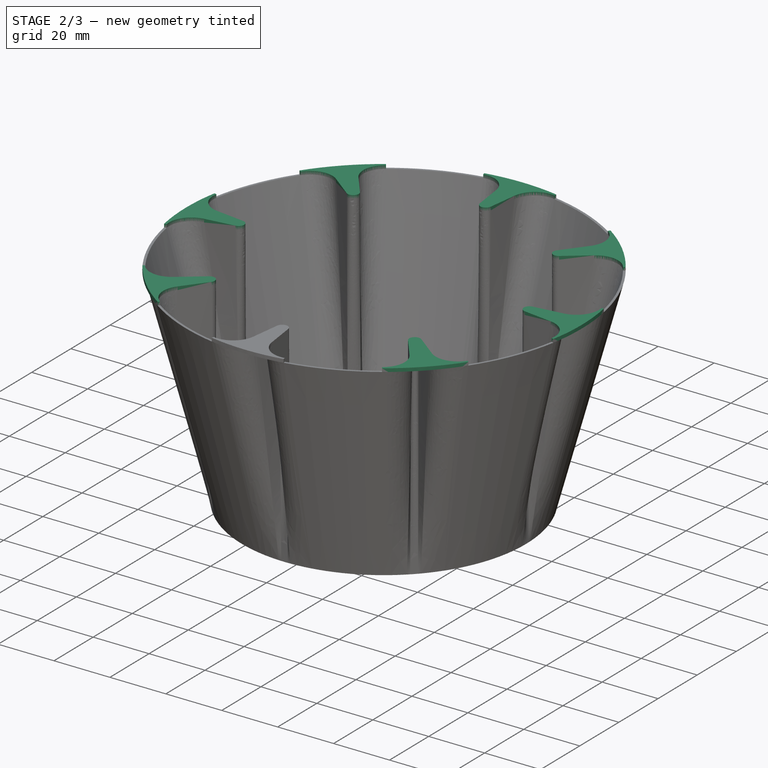
[diagram: stage 2 of 3 — iso view after this stage's code; geometry added in this stage tinted green]
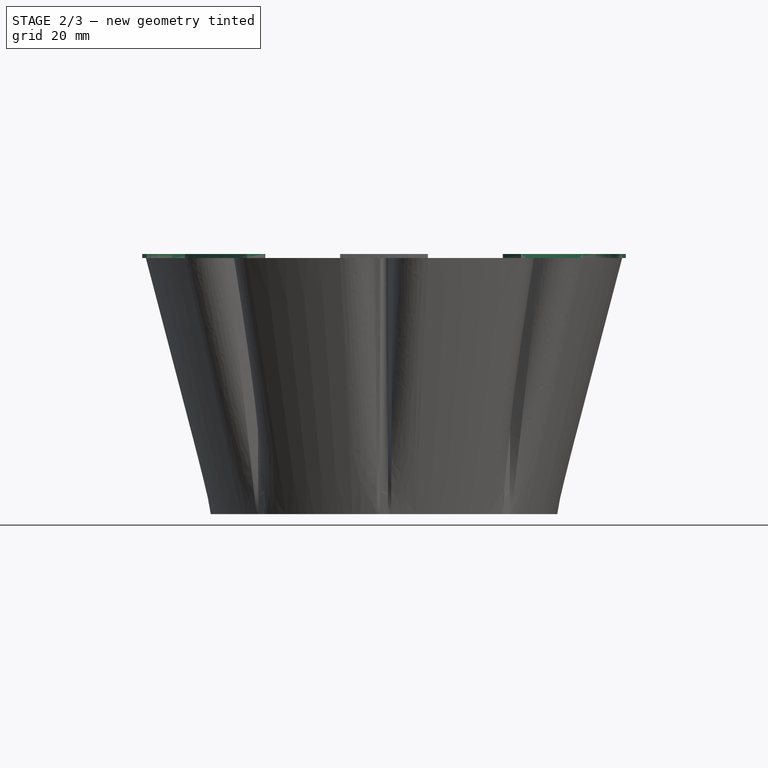
[diagram: stage 2 of 3 — front view after this stage's code; geometry added in this stage tinted green]
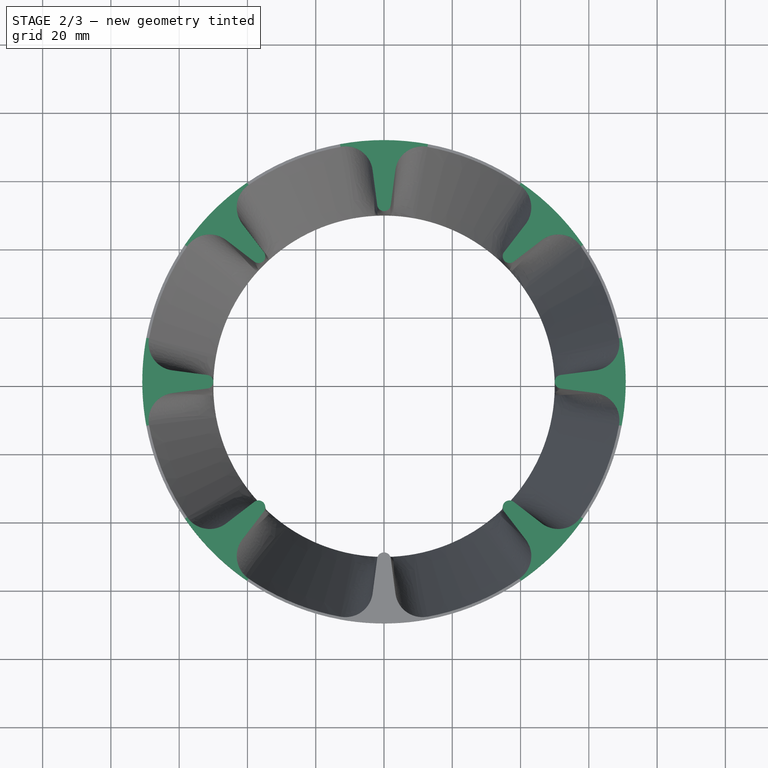
[diagram: stage 2 of 3 — top view after this stage's code; geometry added in this stage tinted green]
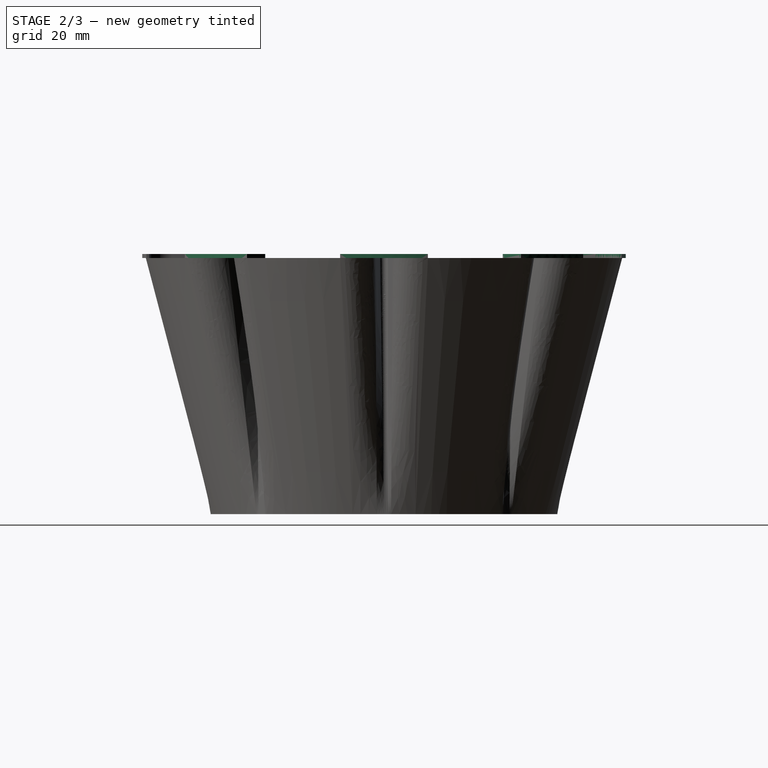
[diagram: stage 2 of 3 — right view after this stage's code; geometry added in this stage tinted green]
FEATURE [PartDesign::PolarPattern] PolarPattern
  Angle = 360
  Axis = -> Sketch002 [N_Axis]
  BaseFeature = -> Pad
  Occurrences = 8
  Originals = -> [Pad]
  Refine = true
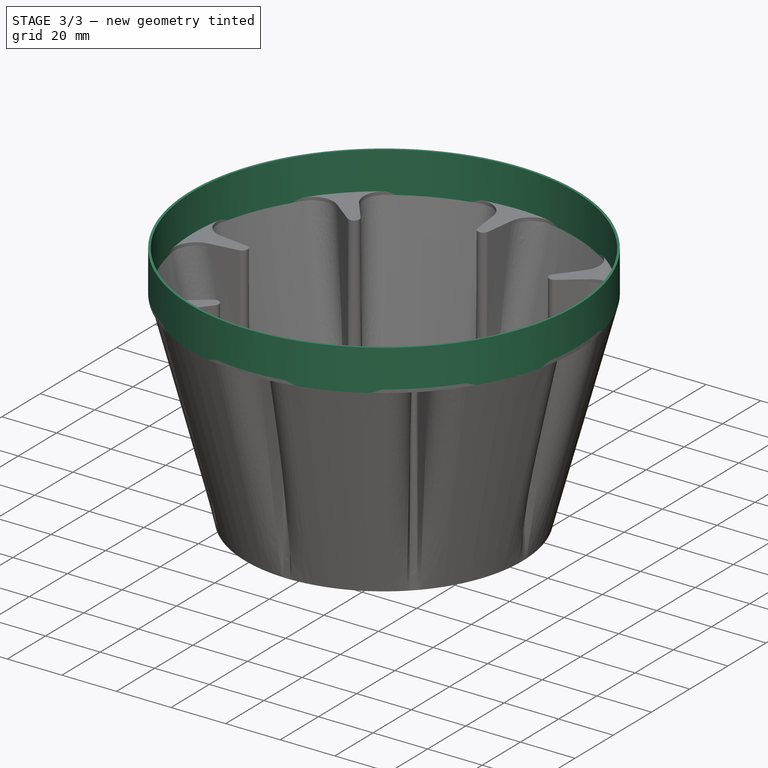
[diagram: stage 3 of 3 — iso view after this stage's code; geometry added in this stage tinted green]
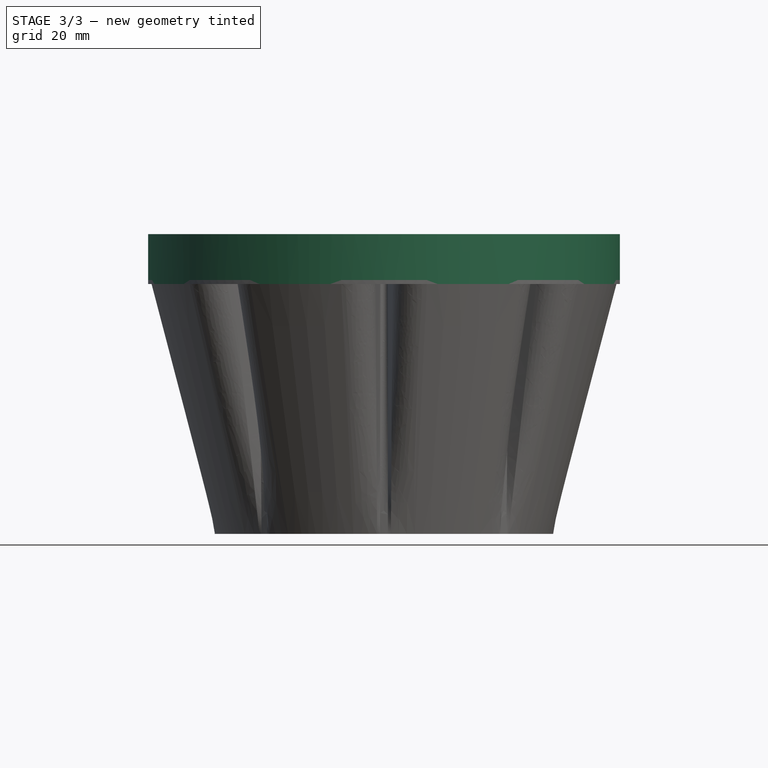
[diagram: stage 3 of 3 — front view after this stage's code; geometry added in this stage tinted green]
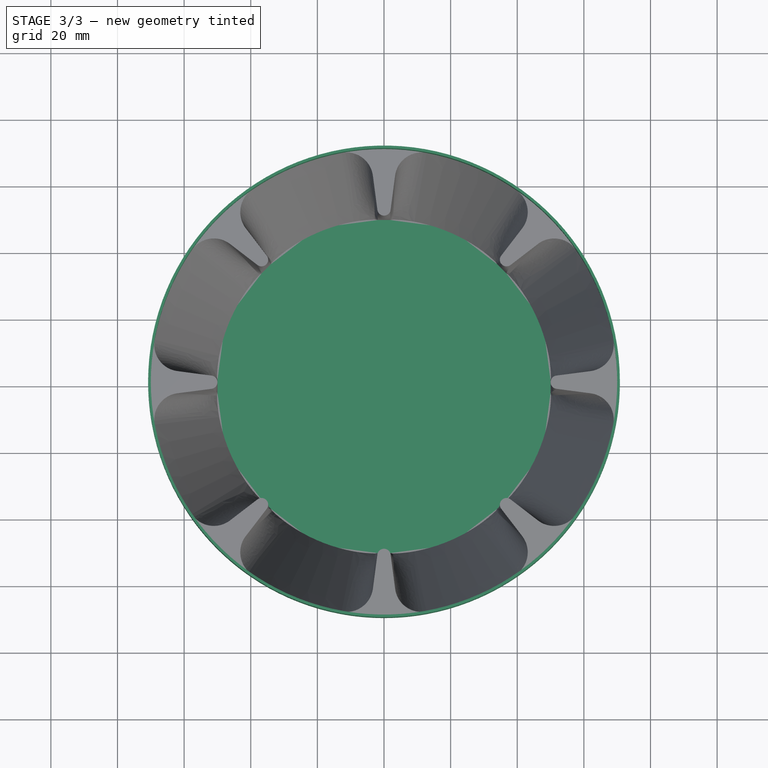
[diagram: stage 3 of 3 — top view after this stage's code; geometry added in this stage tinted green]
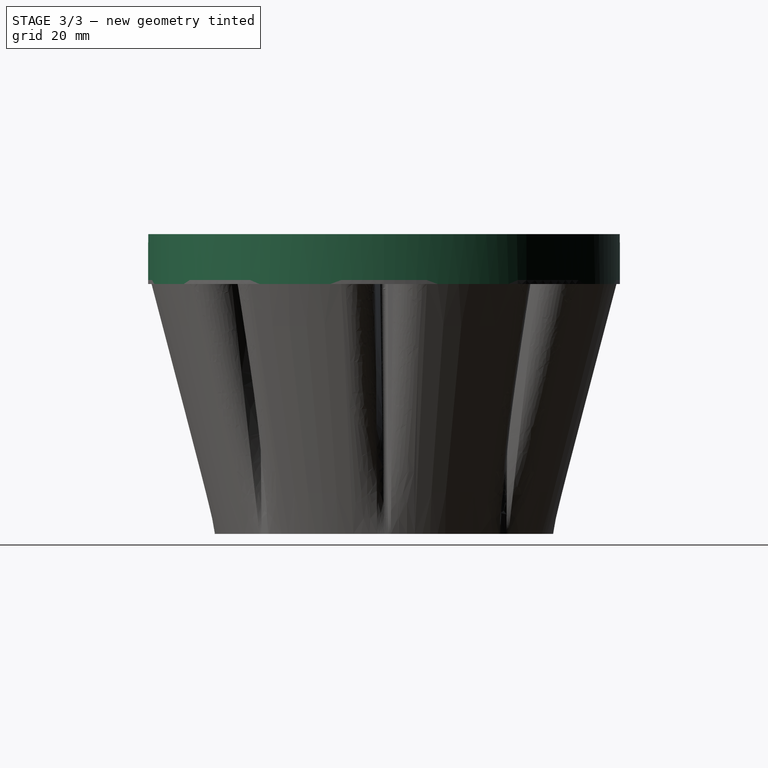
[diagram: stage 3 of 3 — right view after this stage's code; geometry added in this stage tinted green]
FEATURE [Sketcher::SketchObject] Sketch003
  AttachmentOffset = pos=(0,0,74.999) rot=(0,0,1;0rad)
  ExternalGeometry = -> [Sketch]
  FullyConstrained = true
  MapMode = 5
  Placement = pos=(0,0,74.999) rot=(0,0,1;0rad)
  Support = -> [XY_Plane]
  expr: .AttachmentOffset.Base.z = <<Sketch002>>.AttachmentOffset.Base.z
  sketch-geometry (2):
    g0: Circle CenterX=0 CenterY=0 CenterZ=0 NormalX=0 NormalY=0 NormalZ=1 AngleXU=0 Radius=70
    g1: Circle CenterX=0 CenterY=0 CenterZ=0 NormalX=0 NormalY=0 NormalZ=1 AngleXU=0 Radius=70.8
  constraints (4):
    c: Coincident(g0,g-1)
    c: Coincident(g1,g0)
    c: Equal(g0,g-4)
    c: Equal(g1,g-3)
FEATURE [PartDesign::Pad] Pad001
  BaseFeature = -> PolarPattern
  Direction = (1,1,1)
  Length = 15
  Length2 = 100
  Profile = -> Sketch003
  Refine = true
  Type = 0
FEATURE [Sketcher::SketchObject] Sketch004
  ExternalGeometry = -> [Sketch001]
  FullyConstrained = true
  MapMode = 5
  Support = -> [XY_Plane]
  sketch-geometry (1):
    g0: Circle CenterX=0 CenterY=0 CenterZ=0 NormalX=0 NormalY=0 NormalZ=1 AngleXU=0 Radius=50.8
  constraints (2):
    c: Coincident(g0,g-1)
    c: Equal(g0,g-3)
FEATURE [PartDesign::Pad] Pad002
  BaseFeature = -> Pad001
  Direction = (1,1,1)
  Length = 1.2
  Length2 = 100
  Profile = -> Sketch004
  Type = 0
FEATURE [PartDesign::Body] Body
  Group = -> [Sketch,Sketch001,AdditiveLoft,Sketch002,Pad,PolarPattern,Sketch003,Pad001,Sketch004,Pad002]
  Origin = -> Origin
  Tip = -> Pad002
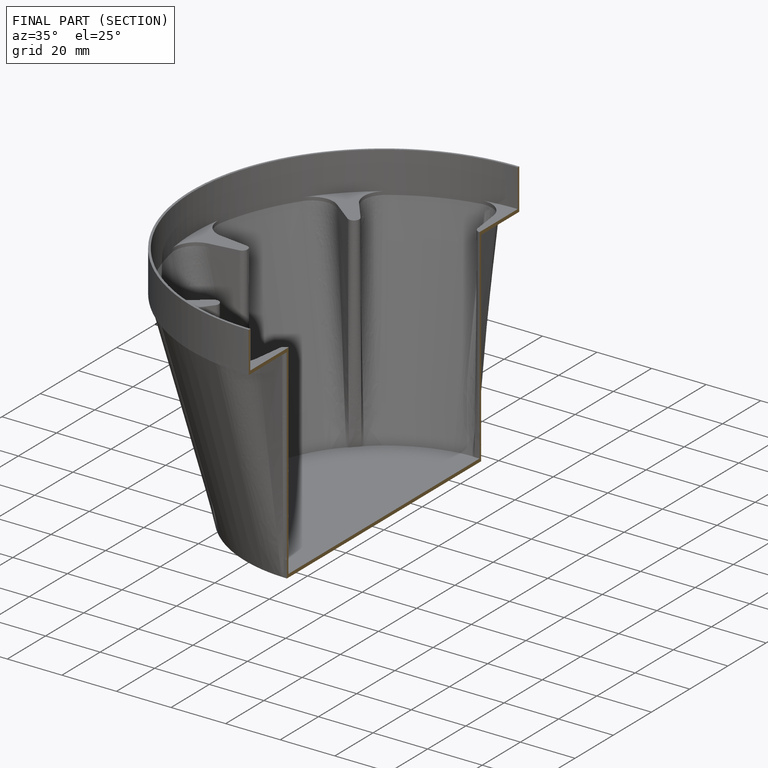
[diagram: finished part — half-section view (interior)]
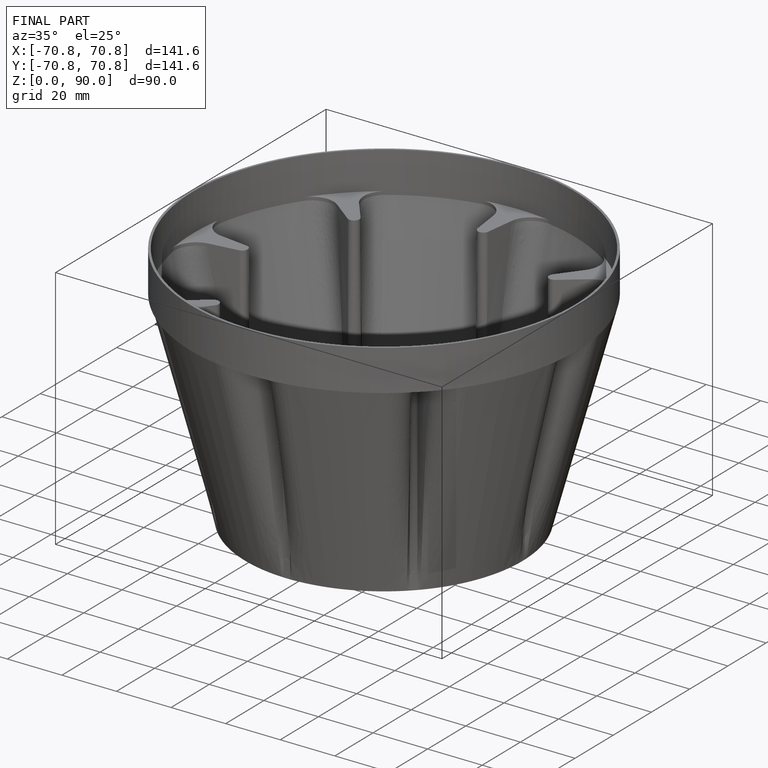
[diagram: finished part — iso view with bounding-box wireframe]
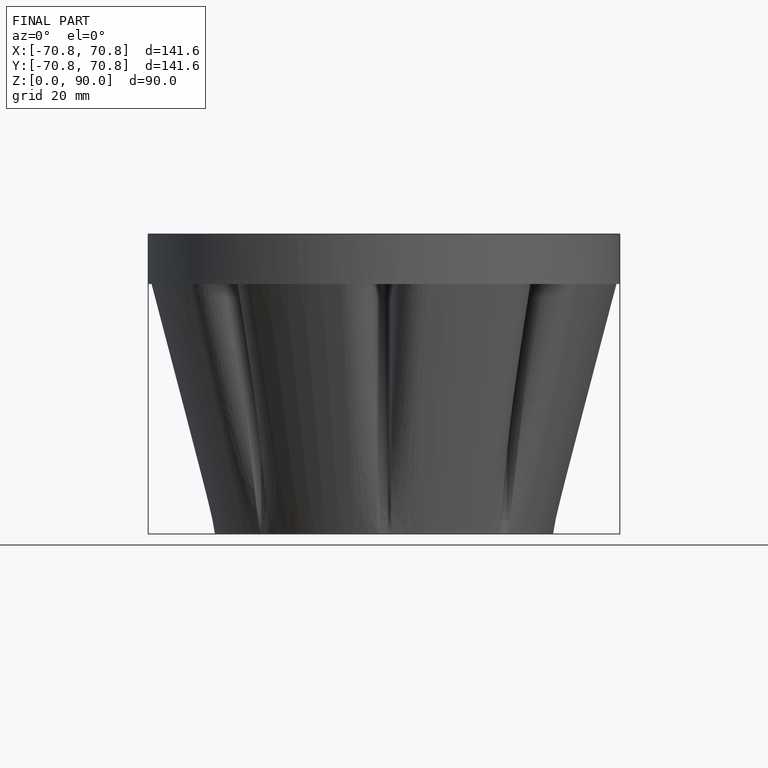
[diagram: finished part — front view with bounding-box wireframe]
